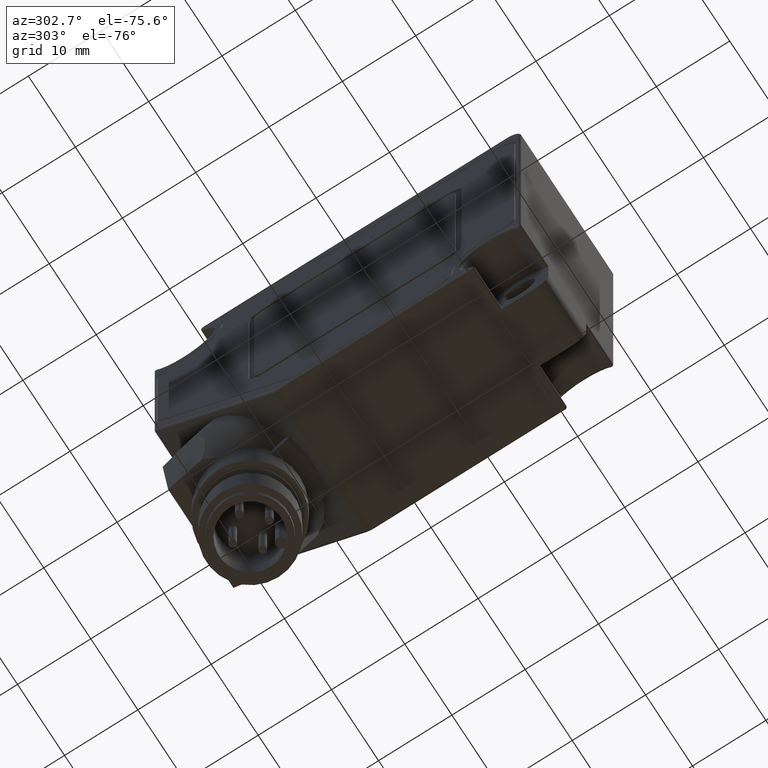
[diagram: clean part render]
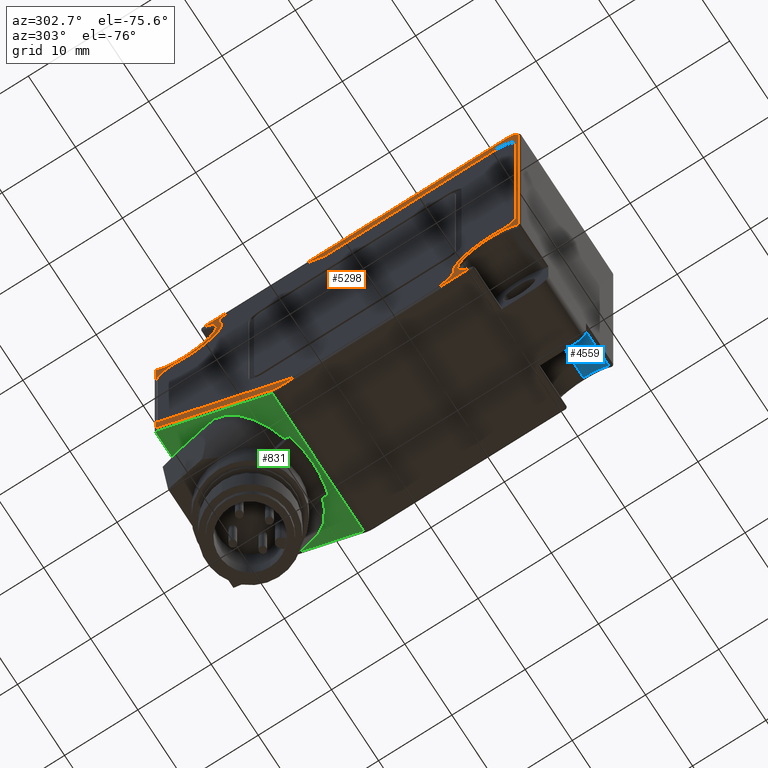
[diagram: same view with three faces highlighted in distinct colors, each labeled with its STEP entity id]
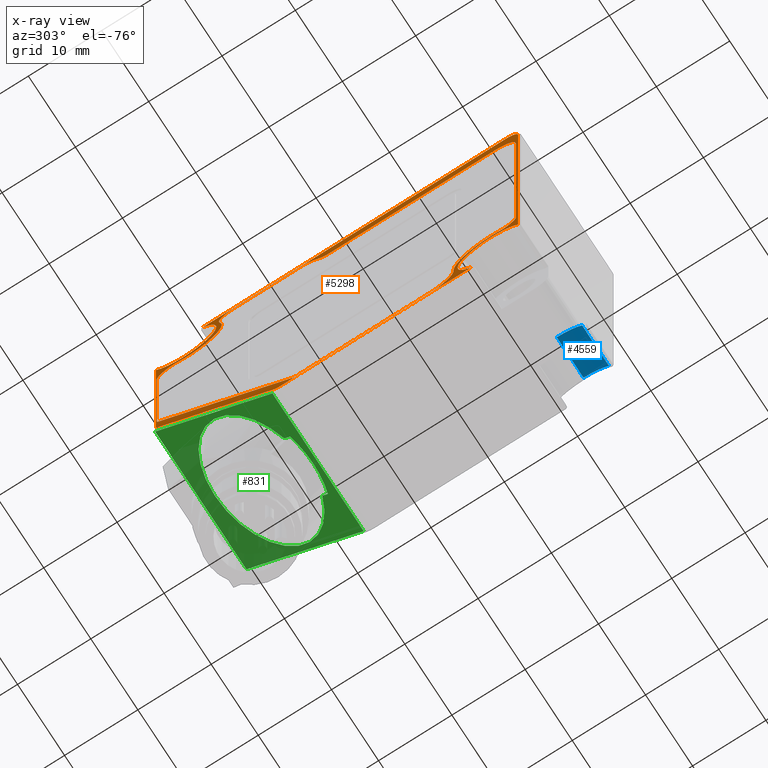
[diagram: x-ray of the same camera — body ghosted, the three highlighted faces saturated]
A machine part, auxiliary view with three faces highlighted in distinct colors.
The next image is the same camera in x-ray (body ghosted, the three faces saturated) — at least one of them is partly hidden behind the body in this view.
Their STEP definitions:

[orange] entity #5298 — the highlighted planar face has unit normal (1, 0, 0).
#92 = CARTESIAN_POINT ( 'NONE',  ( -10.00000000000000000, 21.00000000000051900, 21.00000000000046200 ) ) ;
#130 = CARTESIAN_POINT ( 'NONE',  ( -10.00000000000000000, -24.69999999999976800, -18.35188746462651100 ) ) ;
#157 = DIRECTION ( 'NONE',  ( 0.0000000000000000000, 0.0000000000000000000, -1.000000000000000000 ) ) ;
#504 = ORIENTED_EDGE ( 'NONE', *, *, #12717, .F. ) ;
#519 = VECTOR ( 'NONE', #853, 1000.000000000000000 ) ;
#528 = CIRCLE ( 'NONE', #12953, 3.331281111047055300 ) ;
#536 = EDGE_CURVE ( 'NONE', #5406, #5513, #7795, .T. ) ;
#648 = CARTESIAN_POINT ( 'NONE',  ( -10.00000000000000000, 24.59999999999999400, 13.25441742560608600 ) ) ;
#673 = DIRECTION ( 'NONE',  ( -1.000000000000000000, 0.0000000000000000000, 0.0000000000000000000 ) ) ;
#853 = DIRECTION ( 'NONE',  ( 0.0000000000000000000, -1.912032204741062200E-011, 1.000000000000000000 ) ) ;
#912 = VECTOR ( 'NONE', #2810, 1000.000000000000000 ) ;
#1004 = DIRECTION ( 'NONE',  ( 0.0000000000000000000, 0.0000000000000000000, -1.000000000000000000 ) ) ;
#1045 = ORIENTED_EDGE ( 'NONE', *, *, #3751, .T. ) ;
#1100 = ORIENTED_EDGE ( 'NONE', *, *, #3669, .F. ) ;
#1188 = DIRECTION ( 'NONE',  ( 0.0000000000000000000, 0.0000000000000000000, -1.000000000000000000 ) ) ;
#1234 = ORIENTED_EDGE ( 'NONE', *, *, #11632, .F. ) ;
#1237 = CARTESIAN_POINT ( 'NONE',  ( -10.00000000000000000, 20.46843691131362100, 20.46329335647410700 ) ) ;
#1291 = VERTEX_POINT ( 'NONE', #4062 ) ;
#1368 = DIRECTION ( 'NONE',  ( -1.000000000000000000, -0.0000000000000000000, -0.0000000000000000000 ) ) ;
#1371 = LINE ( 'NONE', #1790, #3963 ) ;
#1445 = VERTEX_POINT ( 'NONE', #9765 ) ;
#1570 = AXIS2_PLACEMENT_3D ( 'NONE', #2067, #9748, #3161 ) ;
#1646 = ORIENTED_EDGE ( 'NONE', *, *, #7006, .F. ) ;
#1712 = ORIENTED_EDGE ( 'NONE', *, *, #7169, .F. ) ;
#1735 = VECTOR ( 'NONE', #6294, 1000.000000000000000 ) ;
#1790 = CARTESIAN_POINT ( 'NONE',  ( -10.00000000000000000, 23.00000000000000400, -24.70000000000000300 ) ) ;
#1798 = EDGE_CURVE ( 'NONE', #12879, #5043, #8626, .T. ) ;
#2044 = EDGE_CURVE ( 'NONE', #3282, #11384, #7933, .T. ) ;
#2067 = CARTESIAN_POINT ( 'NONE',  ( -10.00000000000000000, -21.00000000000165900, -21.00000000000147400 ) ) ;
#2114 = DIRECTION ( 'NONE',  ( -1.000000000000000000, 0.0000000000000000000, 0.0000000000000000000 ) ) ;
#2119 = ORIENTED_EDGE ( 'NONE', *, *, #6905, .T. ) ;
#2238 = CIRCLE ( 'NONE', #6345, 2.395910799220824400 ) ;
#2275 = EDGE_CURVE ( 'NONE', #5513, #12501, #12924, .T. ) ;
#2326 = CARTESIAN_POINT ( 'NONE',  ( -10.00000000000000000, -24.39783230957649000, 19.48473466730392900 ) ) ;
#2354 = DIRECTION ( 'NONE',  ( 0.0000000000000000000, 0.0000000000000000000, -1.000000000000000000 ) ) ;
#2383 = EDGE_CURVE ( 'NONE', #6592, #4982, #10218, .T. ) ;
#2495 = CARTESIAN_POINT ( 'NONE',  ( -10.00000000000000000, -21.00000000000180500, -15.88995179449886800 ) ) ;
#2507 = CIRCLE ( 'NONE', #8859, 1.912846764730597600 ) ;
#2568 = DIRECTION ( 'NONE',  ( 1.000000000000000000, 0.0000000000000000000, 0.0000000000000000000 ) ) ;
#2577 = CARTESIAN_POINT ( 'NONE',  ( -10.00000000000000000, -22.56723011106437200, -14.18068932276107000 ) ) ;
#2679 = ORIENTED_EDGE ( 'NONE', *, *, #1798, .F. ) ;
#2688 = CIRCLE ( 'NONE', #9213, 1.852144326035785300 ) ;
#2702 = CIRCLE ( 'NONE', #5728, 0.9499999999999995100 ) ;
#2764 = VECTOR ( 'NONE', #8242, 1000.000000000000000 ) ;
#2783 = CARTESIAN_POINT ( 'NONE',  ( -10.00000000000000000, 24.32175144212226700, -6.122613639262359800 ) ) ;
#2810 = DIRECTION ( 'NONE',  ( 0.0000000000000000000, -2.643083667417159700E-013, -1.000000000000000000 ) ) ;
#2832 = EDGE_CURVE ( 'NONE', #13973, #12033, #3841, .T. ) ;
#2896 = DIRECTION ( 'NONE',  ( 0.0000000000000000000, -1.000000000000000000, -0.0000000000000000000 ) ) ;
#2911 = CARTESIAN_POINT ( 'NONE',  ( -10.00000000000000000, -21.50125881136200300, 19.65529036514396900 ) ) ;
#2945 = CARTESIAN_POINT ( 'NONE',  ( -10.00000000000000000, 21.85580603588105600, 15.92616638744630300 ) ) ;
#3001 = ORIENTED_EDGE ( 'NONE', *, *, #12418, .F. ) ;
#3020 = ORIENTED_EDGE ( 'NONE', *, *, #4115, .F. ) ;
#3023 = CARTESIAN_POINT ( 'NONE',  ( -10.00000000000000000, -12.58635869798284700, -21.27490654219727200 ) ) ;
#3039 = CARTESIAN_POINT ( 'NONE',  ( -10.00000000000000000, 22.22348153348595900, 13.55863533458049000 ) ) ;
#3087 = PLANE ( 'NONE',  #7059 ) ;
#3092 = VECTOR ( 'NONE', #9065, 1000.000000000000000 ) ;
#3145 = ORIENTED_EDGE ( 'NONE', *, *, #10085, .F. ) ;
#3161 = DIRECTION ( 'NONE',  ( 0.0000000000000000000, 0.0000000000000000000, -1.000000000000000000 ) ) ;
#3191 = AXIS2_PLACEMENT_3D ( 'NONE', #4087, #11730, #5196 ) ;
#3282 = VERTEX_POINT ( 'NONE', #6753 ) ;
#3340 = ORIENTED_EDGE ( 'NONE', *, *, #12126, .F. ) ;
#3354 = EDGE_LOOP ( 'NONE', ( #8108, #7501, #1045, #2119, #5195, #13260, #7850, #13383, #10956, #6009 ) ) ;
#3445 = LINE ( 'NONE', #11682, #519 ) ;
#3485 = CARTESIAN_POINT ( 'NONE',  ( -10.00000000000000000, -22.99999999999998600, 23.00000000000000400 ) ) ;
#3493 = LINE ( 'NONE', #11516, #9334 ) ;
#3506 = CARTESIAN_POINT ( 'NONE',  ( -10.00000000000000000, -15.89183969675968600, -20.86110803139260000 ) ) ;
#3539 = EDGE_CURVE ( 'NONE', #11384, #6311, #8460, .T. ) ;
#3669 = EDGE_CURVE ( 'NONE', #9814, #5406, #3445, .T. ) ;
#3684 = DIRECTION ( 'NONE',  ( 0.0000000000000000000, 0.0000000000000000000, -1.000000000000000000 ) ) ;
#3751 = EDGE_CURVE ( 'NONE', #4911, #5942, #5015, .T. ) ;
#3841 = CIRCLE ( 'NONE', #12081, 0.9500000000000002900 ) ;
#3923 = CARTESIAN_POINT ( 'NONE',  ( -10.00000000000000000, 23.00000000000000400, 24.69999999999999900 ) ) ;
#3963 = VECTOR ( 'NONE', #2896, 1000.000000000000000 ) ;
#3964 = DIRECTION ( 'NONE',  ( -0.0000000000000000000, 1.000000000000000000, 0.0000000000000000000 ) ) ;
#4012 = DIRECTION ( 'NONE',  ( 0.0000000000000000000, 0.0000000000000000000, -1.000000000000000000 ) ) ;
#4062 = CARTESIAN_POINT ( 'NONE',  ( -10.00000000000000000, -24.69999999999998200, 22.99999999999998900 ) ) ;
#4087 = CARTESIAN_POINT ( 'NONE',  ( -10.00000000000000000, 21.00000000000051900, 21.00000000000046200 ) ) ;
#4115 = EDGE_CURVE ( 'NONE', #8044, #7981, #8571, .T. ) ;
#4133 = DIRECTION ( 'NONE',  ( 0.0000000000000000000, 0.0000000000000000000, -1.000000000000000000 ) ) ;
#4147 = DIRECTION ( 'NONE',  ( 0.0000000000000000000, 0.0000000000000000000, -1.000000000000000000 ) ) ;
#4222 = EDGE_CURVE ( 'NONE', #1445, #10029, #14150, .T. ) ;
#4322 = VECTOR ( 'NONE', #7399, 1000.000000000000000 ) ;
#4520 = CIRCLE ( 'NONE', #9645, 1.852144326035785300 ) ;
#4565 = DIRECTION ( 'NONE',  ( 1.000000000000000000, 0.0000000000000000000, 0.0000000000000000000 ) ) ;
#4593 = CIRCLE ( 'NONE', #5552, 1.699999999999996600 ) ;
#4613 = DIRECTION ( 'NONE',  ( 0.0000000000000000000, 0.0000000000000000000, -1.000000000000000000 ) ) ;
#4668 = LINE ( 'NONE', #13866, #1735 ) ;
#4713 = DIRECTION ( 'NONE',  ( -1.000000000000000000, 0.0000000000000000000, 0.0000000000000000000 ) ) ;
#4838 = CARTESIAN_POINT ( 'NONE',  ( -10.00000000000000000, 3.355049469341893100, 23.96881014522390500 ) ) ;
#4911 = VERTEX_POINT ( 'NONE', #9423 ) ;
#4982 = VERTEX_POINT ( 'NONE', #2945 ) ;
#5015 = CIRCLE ( 'NONE', #1570, 4.549999999999561100 ) ;
#5043 = VERTEX_POINT ( 'NONE', #5315 ) ;
#5060 = DIRECTION ( 'NONE',  ( 0.0000000000000000000, 0.0000000000000000000, -1.000000000000000000 ) ) ;
#5195 = ORIENTED_EDGE ( 'NONE', *, *, #10016, .T. ) ;
#5196 = DIRECTION ( 'NONE',  ( 0.0000000000000000000, 0.0000000000000000000, -1.000000000000000000 ) ) ;
#5212 = CARTESIAN_POINT ( 'NONE',  ( -10.00000000000000000, 7.585572875253816100, -24.70000000000000300 ) ) ;
#5266 = CARTESIAN_POINT ( 'NONE',  ( -10.00000000000000000, -22.40373175078568100, -16.08653586210428400 ) ) ;
#5298 = ADVANCED_FACE ( 'NONE', ( #6449, #11879 ), #3087, .F. ) ;
#5315 = CARTESIAN_POINT ( 'NONE',  ( -10.00000000000000000, -12.78930533554444400, -24.59999999999993000 ) ) ;
#5345 = VERTEX_POINT ( 'NONE', #8780 ) ;
#5406 = VERTEX_POINT ( 'NONE', #2326 ) ;
#5513 = VERTEX_POINT ( 'NONE', #12333 ) ;
#5531 = AXIS2_PLACEMENT_3D ( 'NONE', #92, #7799, #1188 ) ;
#5543 = VECTOR ( 'NONE', #5060, 1000.000000000000000 ) ;
#5547 = CARTESIAN_POINT ( 'NONE',  ( -10.00000000000000000, 5.450862197129485900, -24.59999999999999100 ) ) ;
#5552 = AXIS2_PLACEMENT_3D ( 'NONE', #3485, #11141, #4613 ) ;
#5562 = CARTESIAN_POINT ( 'NONE',  ( -10.00000000000000000, 14.27064920895239000, 22.64075989398626400 ) ) ;
#5728 = AXIS2_PLACEMENT_3D ( 'NONE', #11254, #4713, #12318 ) ;
#5942 = VERTEX_POINT ( 'NONE', #130 ) ;
#5960 = ORIENTED_EDGE ( 'NONE', *, *, #2383, .F. ) ;
#6009 = ORIENTED_EDGE ( 'NONE', *, *, #8166, .T. ) ;
#6046 = LINE ( 'NONE', #13302, #3092 ) ;
#6051 = CARTESIAN_POINT ( 'NONE',  ( -10.00000000000000000, 7.585572875253816100, -23.00000000000000000 ) ) ;
#6076 = AXIS2_PLACEMENT_3D ( 'NONE', #1237, #8937, #2354 ) ;
#6095 = ORIENTED_EDGE ( 'NONE', *, *, #8194, .F. ) ;
#6105 = LINE ( 'NONE', #648, #912 ) ;
#6108 = DIRECTION ( 'NONE',  ( 0.0000000000000000000, -0.7071067811865474600, -0.7071067811865474600 ) ) ;
#6143 = CARTESIAN_POINT ( 'NONE',  ( -10.00000000000000000, 6.122613639259238700, -24.32175144212467500 ) ) ;
#6221 = AXIS2_PLACEMENT_3D ( 'NONE', #11105, #4565, #12171 ) ;
#6251 = ORIENTED_EDGE ( 'NONE', *, *, #12734, .F. ) ;
#6294 = DIRECTION ( 'NONE',  ( 0.0000000000000000000, 0.7646883451253350100, 0.6444002908359651700 ) ) ;
#6311 = VERTEX_POINT ( 'NONE', #9476 ) ;
#6345 = AXIS2_PLACEMENT_3D ( 'NONE', #12858, #6373, #13964 ) ;
#6373 = DIRECTION ( 'NONE',  ( -1.000000000000000000, -0.0000000000000000000, -0.0000000000000000000 ) ) ;
#6449 = FACE_BOUND ( 'NONE', #11643, .T. ) ;
#6486 = DIRECTION ( 'NONE',  ( 1.000000000000000000, 0.0000000000000000000, 0.0000000000000000000 ) ) ;
#6520 = VECTOR ( 'NONE', #3964, 1000.000000000000000 ) ;
#6534 = CARTESIAN_POINT ( 'NONE',  ( -10.00000000000000000, 24.59999999999504900, -5.450862197135389700 ) ) ;
#6592 = VERTEX_POINT ( 'NONE', #12516 ) ;
#6701 = DIRECTION ( 'NONE',  ( 0.0000000000000000000, 0.0000000000000000000, -1.000000000000000000 ) ) ;
#6753 = CARTESIAN_POINT ( 'NONE',  ( -10.00000000000000000, 21.00000000000051900, 16.45000000000076300 ) ) ;
#6759 = DIRECTION ( 'NONE',  ( 1.000000000000000000, 0.0000000000000000000, 0.0000000000000000000 ) ) ;
#6767 = ORIENTED_EDGE ( 'NONE', *, *, #7583, .F. ) ;
#6817 = EDGE_CURVE ( 'NONE', #8979, #3282, #10007, .T. ) ;
#6861 = LINE ( 'NONE', #3923, #6520 ) ;
#6898 = CARTESIAN_POINT ( 'NONE',  ( -10.00000000000000000, 14.27064920895239000, 24.49290422002204800 ) ) ;
#6905 = EDGE_CURVE ( 'NONE', #5942, #1291, #12705, .T. ) ;
#6985 = ORIENTED_EDGE ( 'NONE', *, *, #536, .F. ) ;
#7006 = EDGE_CURVE ( 'NONE', #10709, #9182, #4520, .T. ) ;
#7046 = AXIS2_PLACEMENT_3D ( 'NONE', #2911, #10587, #4012 ) ;
#7055 = AXIS2_PLACEMENT_3D ( 'NONE', #3039, #10700, #4147 ) ;
#7059 = AXIS2_PLACEMENT_3D ( 'NONE', #12963, #6486, #14068 ) ;
#7166 = DIRECTION ( 'NONE',  ( 0.0000000000000000000, 0.0000000000000000000, -1.000000000000000000 ) ) ;
#7169 = EDGE_CURVE ( 'NONE', #14124, #12879, #2702, .T. ) ;
#7176 = VERTEX_POINT ( 'NONE', #2495 ) ;
#7207 = ORIENTED_EDGE ( 'NONE', *, *, #11618, .F. ) ;
#7288 = CARTESIAN_POINT ( 'NONE',  ( -10.00000000000000000, 23.64999999999505000, -5.450862197135138300 ) ) ;
#7399 = DIRECTION ( 'NONE',  ( 0.0000000000000000000, 1.000000000000000000, -1.553505189708375000E-016 ) ) ;
#7437 = VECTOR ( 'NONE', #7847, 1000.000000000000100 ) ;
#7501 = ORIENTED_EDGE ( 'NONE', *, *, #12626, .T. ) ;
#7583 = EDGE_CURVE ( 'NONE', #9534, #9814, #2507, .T. ) ;
#7618 = DIRECTION ( 'NONE',  ( -1.000000000000000000, -0.0000000000000000000, -0.0000000000000000000 ) ) ;
#7795 = CIRCLE ( 'NONE', #7046, 2.901590473623767900 ) ;
#7799 = DIRECTION ( 'NONE',  ( 1.000000000000000000, 0.0000000000000000000, 0.0000000000000000000 ) ) ;
#7841 = CARTESIAN_POINT ( 'NONE',  ( -10.00000000000000000, 4.772730109181014600, 24.48649578594816500 ) ) ;
#7847 = DIRECTION ( 'NONE',  ( 0.0000000000000000000, -0.7071067811865613400, -0.7071067811865335800 ) ) ;
#7850 = ORIENTED_EDGE ( 'NONE', *, *, #6817, .T. ) ;
#7924 = CARTESIAN_POINT ( 'NONE',  ( -10.00000000000000000, 14.11670889067858600, 24.48649578594816800 ) ) ;
#7933 = CIRCLE ( 'NONE', #3191, 4.549999999999700500 ) ;
#7975 = CARTESIAN_POINT ( 'NONE',  ( -10.00000000000000000, 14.27064920895239000, 22.64075989398626400 ) ) ;
#7981 = VERTEX_POINT ( 'NONE', #7841 ) ;
#8044 = VERTEX_POINT ( 'NONE', #4838 ) ;
#8091 = EDGE_CURVE ( 'NONE', #11000, #14111, #9681, .T. ) ;
#8108 = ORIENTED_EDGE ( 'NONE', *, *, #8091, .F. ) ;
#8166 = EDGE_CURVE ( 'NONE', #6311, #14111, #3493, .T. ) ;
#8194 = EDGE_CURVE ( 'NONE', #5345, #13973, #6105, .T. ) ;
#8242 = DIRECTION ( 'NONE',  ( 0.0000000000000000000, -1.000000000000000000, 3.233555726807797400E-015 ) ) ;
#8392 = DIRECTION ( 'NONE',  ( 0.0000000000000000000, 0.0000000000000000000, 1.000000000000000000 ) ) ;
#8460 = LINE ( 'NONE', #10502, #5543 ) ;
#8558 = AXIS2_PLACEMENT_3D ( 'NONE', #14105, #7618, #1004 ) ;
#8571 = CIRCLE ( 'NONE', #8695, 2.200000000000000600 ) ;
#8626 = LINE ( 'NONE', #9317, #2764 ) ;
#8695 = AXIS2_PLACEMENT_3D ( 'NONE', #8716, #2114, #9787 ) ;
#8716 = CARTESIAN_POINT ( 'NONE',  ( -10.00000000000000000, 4.772730109181014600, 22.28649578594816600 ) ) ;
#8780 = CARTESIAN_POINT ( 'NONE',  ( -10.00000000000000000, 24.59999999999999400, 13.25441742560608600 ) ) ;
#8793 = VERTEX_POINT ( 'NONE', #11519 ) ;
#8859 = AXIS2_PLACEMENT_3D ( 'NONE', #2577, #10256, #3684 ) ;
#8928 = CARTESIAN_POINT ( 'NONE',  ( -10.00000000000000000, 2.175285842334393900, 22.97462731347599900 ) ) ;
#8937 = DIRECTION ( 'NONE',  ( 1.000000000000000000, 0.0000000000000000000, 0.0000000000000000000 ) ) ;
#8979 = VERTEX_POINT ( 'NONE', #10906 ) ;
#9065 = DIRECTION ( 'NONE',  ( 0.0000000000000000000, 1.000000000000000000, 3.713029570255039100E-016 ) ) ;
#9066 = DIRECTION ( 'NONE',  ( 0.0000000000000000000, 0.0000000000000000000, -1.000000000000000000 ) ) ;
#9070 = DIRECTION ( 'NONE',  ( -0.0000000000000000000, 0.0000000000000000000, 1.000000000000000000 ) ) ;
#9153 = CARTESIAN_POINT ( 'NONE',  ( -10.00000000000000000, -21.00000000000180500, -21.00000000000180800 ) ) ;
#9182 = VERTEX_POINT ( 'NONE', #6898 ) ;
#9213 = AXIS2_PLACEMENT_3D ( 'NONE', #7975, #1368, #9066 ) ;
#9214 = AXIS2_PLACEMENT_3D ( 'NONE', #6051, #13651, #7166 ) ;
#9317 = CARTESIAN_POINT ( 'NONE',  ( -10.00000000000000000, 5.450862197129485900, -24.59999999999999100 ) ) ;
#9334 = VECTOR ( 'NONE', #6108, 1000.000000000000100 ) ;
#9368 = CARTESIAN_POINT ( 'NONE',  ( -10.00000000000000000, 22.22348153348595900, 15.95454613380131400 ) ) ;
#9423 = CARTESIAN_POINT ( 'NONE',  ( -10.00000000000000000, -18.35188746462652500, -24.69999999999946300 ) ) ;
#9476 = CARTESIAN_POINT ( 'NONE',  ( -10.00000000000000000, 24.69999999999999900, -8.289735931288072700 ) ) ;
#9534 = VERTEX_POINT ( 'NONE', #5266 ) ;
#9645 = AXIS2_PLACEMENT_3D ( 'NONE', #5562, #13181, #6701 ) ;
#9681 = CIRCLE ( 'NONE', #9214, 1.700000000000000200 ) ;
#9748 = DIRECTION ( 'NONE',  ( 1.000000000000000000, 0.0000000000000000000, 0.0000000000000000000 ) ) ;
#9765 = CARTESIAN_POINT ( 'NONE',  ( -10.00000000000000000, 1.015365318829651000, 22.55106633470160600 ) ) ;
#9787 = DIRECTION ( 'NONE',  ( 0.0000000000000000000, 0.0000000000000000000, 1.000000000000000000 ) ) ;
#9814 = VERTEX_POINT ( 'NONE', #11350 ) ;
#9839 = VECTOR ( 'NONE', #9070, 1000.000000000000000 ) ;
#9934 = ORIENTED_EDGE ( 'NONE', *, *, #12460, .F. ) ;
#10007 = CIRCLE ( 'NONE', #5531, 4.549999999999700500 ) ;
#10016 = EDGE_CURVE ( 'NONE', #1291, #8793, #4593, .T. ) ;
#10029 = VERTEX_POINT ( 'NONE', #8928 ) ;
#10085 = EDGE_CURVE ( 'NONE', #9182, #6592, #2688, .T. ) ;
#10147 = EDGE_CURVE ( 'NONE', #7176, #9534, #14134, .T. ) ;
#10195 = CARTESIAN_POINT ( 'NONE',  ( -10.00000000000000000, -21.31765921779839700, 22.55106633470160900 ) ) ;
#10218 = CIRCLE ( 'NONE', #6076, 4.744503580026308700 ) ;
#10248 = DIRECTION ( 'NONE',  ( 0.0000000000000000000, 0.0000000000000000000, -1.000000000000000000 ) ) ;
#10256 = DIRECTION ( 'NONE',  ( -1.000000000000000000, -0.0000000000000000000, -0.0000000000000000000 ) ) ;
#10276 = CARTESIAN_POINT ( 'NONE',  ( -10.00000000000000000, 24.69999999999970400, 18.35188746462677000 ) ) ;
#10455 = CARTESIAN_POINT ( 'NONE',  ( -10.00000000000000000, 8.787654403270950700, -24.20208152801713600 ) ) ;
#10483 = LINE ( 'NONE', #10657, #4322 ) ;
#10502 = CARTESIAN_POINT ( 'NONE',  ( -10.00000000000000000, 24.69999999999999900, 23.00000000000000400 ) ) ;
#10587 = DIRECTION ( 'NONE',  ( -1.000000000000000000, -0.0000000000000000000, -0.0000000000000000000 ) ) ;
#10607 = ORIENTED_EDGE ( 'NONE', *, *, #10663, .F. ) ;
#10657 = CARTESIAN_POINT ( 'NONE',  ( -10.00000000000000000, -21.31765921779839300, 22.55106633470160900 ) ) ;
#10663 = EDGE_CURVE ( 'NONE', #11881, #7176, #11216, .T. ) ;
#10685 = DIRECTION ( 'NONE',  ( -1.000000000000000000, -0.0000000000000000000, -0.0000000000000000000 ) ) ;
#10700 = DIRECTION ( 'NONE',  ( -1.000000000000000000, -0.0000000000000000000, -0.0000000000000000000 ) ) ;
#10709 = VERTEX_POINT ( 'NONE', #7924 ) ;
#10832 = ORIENTED_EDGE ( 'NONE', *, *, #2832, .F. ) ;
#10906 = CARTESIAN_POINT ( 'NONE',  ( -10.00000000000000000, 18.35188746462480200, 24.69999999999999900 ) ) ;
#10956 = ORIENTED_EDGE ( 'NONE', *, *, #3539, .T. ) ;
#11000 = VERTEX_POINT ( 'NONE', #5212 ) ;
#11100 = CARTESIAN_POINT ( 'NONE',  ( -10.00000000000000000, 24.32175144212226700, -6.122613639262360700 ) ) ;
#11105 = CARTESIAN_POINT ( 'NONE',  ( -10.00000000000000000, 1.015365318829660100, 24.35106633470160300 ) ) ;
#11141 = DIRECTION ( 'NONE',  ( -1.000000000000000000, -0.0000000000000000000, -0.0000000000000000000 ) ) ;
#11216 = CIRCLE ( 'NONE', #11303, 5.110048205502939900 ) ;
#11254 = CARTESIAN_POINT ( 'NONE',  ( -10.00000000000000000, 5.450862197129485900, -23.64999999999999100 ) ) ;
#11303 = AXIS2_PLACEMENT_3D ( 'NONE', #13246, #6759, #157 ) ;
#11323 = LINE ( 'NONE', #11100, #7437 ) ;
#11350 = CARTESIAN_POINT ( 'NONE',  ( -10.00000000000000000, -24.39783230892218700, -14.73555717958687300 ) ) ;
#11384 = VERTEX_POINT ( 'NONE', #10276 ) ;
#11516 = CARTESIAN_POINT ( 'NONE',  ( -10.00000000000000000, 39.49486796564404000, 6.505132034355963100 ) ) ;
#11519 = CARTESIAN_POINT ( 'NONE',  ( -10.00000000000000000, -22.99999999999997200, 24.69999999999999900 ) ) ;
#11618 = EDGE_CURVE ( 'NONE', #10029, #8044, #4668, .T. ) ;
#11632 = EDGE_CURVE ( 'NONE', #12501, #1445, #10483, .T. ) ;
#11643 = EDGE_LOOP ( 'NONE', ( #1234, #11912, #6985, #1100, #6767, #13685, #10607, #3340, #2679, #1712, #3001, #10832, #6095, #6251, #504, #5960, #3145, #1646, #9934, #3020, #7207, #12816 ) ) ;
#11682 = CARTESIAN_POINT ( 'NONE',  ( -10.00000000000000000, -24.39783230892218700, -14.73555717958687300 ) ) ;
#11730 = DIRECTION ( 'NONE',  ( 1.000000000000000000, 0.0000000000000000000, 0.0000000000000000000 ) ) ;
#11879 = FACE_OUTER_BOUND ( 'NONE', #3354, .T. ) ;
#11881 = VERTEX_POINT ( 'NONE', #3506 ) ;
#11912 = ORIENTED_EDGE ( 'NONE', *, *, #2275, .F. ) ;
#12033 = VERTEX_POINT ( 'NONE', #2783 ) ;
#12081 = AXIS2_PLACEMENT_3D ( 'NONE', #7288, #673, #8392 ) ;
#12126 = EDGE_CURVE ( 'NONE', #5043, #11881, #528, .T. ) ;
#12171 = DIRECTION ( 'NONE',  ( 0.0000000000000000000, 0.0000000000000000000, -1.000000000000000000 ) ) ;
#12318 = DIRECTION ( 'NONE',  ( 0.0000000000000000000, 0.0000000000000000000, 1.000000000000000000 ) ) ;
#12333 = CARTESIAN_POINT ( 'NONE',  ( -10.00000000000000000, -21.50125881136200300, 22.55688083876773600 ) ) ;
#12418 = EDGE_CURVE ( 'NONE', #12033, #14124, #11323, .T. ) ;
#12460 = EDGE_CURVE ( 'NONE', #7981, #10709, #6046, .T. ) ;
#12501 = VERTEX_POINT ( 'NONE', #10195 ) ;
#12516 = CARTESIAN_POINT ( 'NONE',  ( -10.00000000000000000, 16.08892242460627700, 22.28816789506651500 ) ) ;
#12626 = EDGE_CURVE ( 'NONE', #11000, #4911, #1371, .T. ) ;
#12705 = LINE ( 'NONE', #13356, #9839 ) ;
#12717 = EDGE_CURVE ( 'NONE', #4982, #14107, #13504, .T. ) ;
#12734 = EDGE_CURVE ( 'NONE', #14107, #5345, #2238, .T. ) ;
#12816 = ORIENTED_EDGE ( 'NONE', *, *, #4222, .F. ) ;
#12826 = AXIS2_PLACEMENT_3D ( 'NONE', #9153, #2568, #10248 ) ;
#12858 = CARTESIAN_POINT ( 'NONE',  ( -10.00000000000000000, 22.22348153348595900, 13.55863533458049000 ) ) ;
#12879 = VERTEX_POINT ( 'NONE', #5547 ) ;
#12924 = CIRCLE ( 'NONE', #8558, 2.901590473623767900 ) ;
#12953 = AXIS2_PLACEMENT_3D ( 'NONE', #3023, #10685, #4133 ) ;
#12963 = CARTESIAN_POINT ( 'NONE',  ( -10.00000000000000000, 23.00000000000000400, 23.00000000000000400 ) ) ;
#13181 = DIRECTION ( 'NONE',  ( -1.000000000000000000, -0.0000000000000000000, -0.0000000000000000000 ) ) ;
#13246 = CARTESIAN_POINT ( 'NONE',  ( -10.00000000000000000, -21.00000000000180500, -21.00000000000180800 ) ) ;
#13260 = ORIENTED_EDGE ( 'NONE', *, *, #13830, .T. ) ;
#13302 = CARTESIAN_POINT ( 'NONE',  ( -10.00000000000000000, 4.772730109181013700, 24.48649578594816500 ) ) ;
#13356 = CARTESIAN_POINT ( 'NONE',  ( -10.00000000000000000, -24.69999999999998200, 23.00000000000000400 ) ) ;
#13383 = ORIENTED_EDGE ( 'NONE', *, *, #2044, .T. ) ;
#13504 = CIRCLE ( 'NONE', #7055, 2.395910799220824400 ) ;
#13651 = DIRECTION ( 'NONE',  ( 1.000000000000000000, 0.0000000000000000000, 0.0000000000000000000 ) ) ;
#13685 = ORIENTED_EDGE ( 'NONE', *, *, #10147, .F. ) ;
#13830 = EDGE_CURVE ( 'NONE', #8793, #8979, #6861, .T. ) ;
#13866 = CARTESIAN_POINT ( 'NONE',  ( -10.00000000000000000, 2.175285842334393500, 22.97462731347599900 ) ) ;
#13964 = DIRECTION ( 'NONE',  ( 0.0000000000000000000, 0.0000000000000000000, -1.000000000000000000 ) ) ;
#13973 = VERTEX_POINT ( 'NONE', #6534 ) ;
#14068 = DIRECTION ( 'NONE',  ( 0.0000000000000000000, 0.0000000000000000000, -1.000000000000000000 ) ) ;
#14105 = CARTESIAN_POINT ( 'NONE',  ( -10.00000000000000000, -21.50125881136200300, 19.65529036514396900 ) ) ;
#14107 = VERTEX_POINT ( 'NONE', #9368 ) ;
#14111 = VERTEX_POINT ( 'NONE', #10455 ) ;
#14124 = VERTEX_POINT ( 'NONE', #6143 ) ;
#14134 = CIRCLE ( 'NONE', #12826, 5.110048205502939900 ) ;
#14150 = CIRCLE ( 'NONE', #6221, 1.799999999999999600 ) ;

[blue] entity #4559 — the highlighted cylindrical surface (partial cylindrical patch) has radius 4.25 mm, axis along (-1, -0, -0).
#125 = DIRECTION ( 'NONE',  ( 0.0000000000000000000, 0.0000000000000000000, 1.000000000000000000 ) ) ;
#587 = CARTESIAN_POINT ( 'NONE',  ( 9.700000000000001100, -24.45604395604376400, -18.52648829113468700 ) ) ;
#891 = CARTESIAN_POINT ( 'NONE',  ( 10.00000000000000000, -21.00000000000165900, -16.75000000000191100 ) ) ;
#1220 = VERTEX_POINT ( 'NONE', #587 ) ;
#1510 = VERTEX_POINT ( 'NONE', #9803 ) ;
#1597 = DIRECTION ( 'NONE',  ( 1.000000000000000000, 0.0000000000000000000, 0.0000000000000000000 ) ) ;
#2117 = EDGE_CURVE ( 'NONE', #1510, #2453, #12658, .T. ) ;
#2276 = ORIENTED_EDGE ( 'NONE', *, *, #9729, .F. ) ;
#2453 = VERTEX_POINT ( 'NONE', #4452 ) ;
#2717 = CIRCLE ( 'NONE', #4154, 4.249999999999563000 ) ;
#3368 = FACE_OUTER_BOUND ( 'NONE', #13928, .T. ) ;
#4154 = AXIS2_PLACEMENT_3D ( 'NONE', #12182, #5699, #13280 ) ;
#4431 = CARTESIAN_POINT ( 'NONE',  ( 4.000000000000000000, -24.45604395604376400, -18.52648829113468700 ) ) ;
#4452 = CARTESIAN_POINT ( 'NONE',  ( 4.000000000000000000, -21.00000000000165900, -16.75000000000191100 ) ) ;
#4559 = ADVANCED_FACE ( 'NONE', ( #3368 ), #4929, .F. ) ;
#4640 = AXIS2_PLACEMENT_3D ( 'NONE', #13122, #9948, #125 ) ;
#4929 = CYLINDRICAL_SURFACE ( 'NONE', #4640, 4.249999999999563000 ) ;
#5034 = CARTESIAN_POINT ( 'NONE',  ( 10.00000000000000000, -24.45604395604376400, -18.52648829113468700 ) ) ;
#5699 = DIRECTION ( 'NONE',  ( 1.000000000000000000, -0.0000000000000000000, -0.0000000000000000000 ) ) ;
#7594 = VECTOR ( 'NONE', #8605, 1000.000000000000000 ) ;
#7661 = ORIENTED_EDGE ( 'NONE', *, *, #9278, .T. ) ;
#8208 = CARTESIAN_POINT ( 'NONE',  ( 9.700000000000001100, -21.00000000000165900, -21.00000000000147400 ) ) ;
#8279 = ORIENTED_EDGE ( 'NONE', *, *, #2117, .F. ) ;
#8605 = DIRECTION ( 'NONE',  ( -1.000000000000000000, -0.0000000000000000000, -0.0000000000000000000 ) ) ;
#9277 = DIRECTION ( 'NONE',  ( 0.0000000000000000000, 0.0000000000000000000, -1.000000000000000000 ) ) ;
#9278 = EDGE_CURVE ( 'NONE', #1510, #1220, #10611, .T. ) ;
#9430 = DIRECTION ( 'NONE',  ( -1.000000000000000000, -0.0000000000000000000, -0.0000000000000000000 ) ) ;
#9729 = EDGE_CURVE ( 'NONE', #2453, #9943, #2717, .T. ) ;
#9803 = CARTESIAN_POINT ( 'NONE',  ( 9.700000000000001100, -21.00000000000165900, -16.75000000000191100 ) ) ;
#9943 = VERTEX_POINT ( 'NONE', #4431 ) ;
#9948 = DIRECTION ( 'NONE',  ( -1.000000000000000000, -0.0000000000000000000, -0.0000000000000000000 ) ) ;
#9966 = ORIENTED_EDGE ( 'NONE', *, *, #13824, .T. ) ;
#10611 = CIRCLE ( 'NONE', #12264, 4.249999999999563000 ) ;
#12182 = CARTESIAN_POINT ( 'NONE',  ( 4.000000000000000000, -21.00000000000165900, -21.00000000000147400 ) ) ;
#12264 = AXIS2_PLACEMENT_3D ( 'NONE', #8208, #1597, #9277 ) ;
#12273 = VECTOR ( 'NONE', #9430, 1000.000000000000000 ) ;
#12658 = LINE ( 'NONE', #891, #7594 ) ;
#12959 = LINE ( 'NONE', #5034, #12273 ) ;
#13122 = CARTESIAN_POINT ( 'NONE',  ( 10.00000000000000000, -21.00000000000165900, -21.00000000000147400 ) ) ;
#13280 = DIRECTION ( 'NONE',  ( 0.0000000000000000000, 0.0000000000000000000, -1.000000000000000000 ) ) ;
#13824 = EDGE_CURVE ( 'NONE', #1220, #9943, #12959, .T. ) ;
#13928 = EDGE_LOOP ( 'NONE', ( #8279, #7661, #9966, #2276 ) ) ;

[green] entity #831 — the highlighted planar face has unit normal (0, -0.7071, 0.7071).
#95 = EDGE_CURVE ( 'NONE', #10976, #6665, #12539, .T. ) ;
#484 = CIRCLE ( 'NONE', #7410, 9.000000000000000000 ) ;
#530 = CARTESIAN_POINT ( 'NONE',  ( -9.700000000000001100, 25.00000000000000000, -8.414000000000001500 ) ) ;
#586 = VECTOR ( 'NONE', #599, 1000.000000000000000 ) ;
#599 = DIRECTION ( 'NONE',  ( 1.000000000000000000, -0.0000000000000000000, -0.0000000000000000000 ) ) ;
#633 = DIRECTION ( 'NONE',  ( -0.0000000000000000000, 0.7071067811865476800, -0.7071067811865474600 ) ) ;
#713 = VERTEX_POINT ( 'NONE', #4064 ) ;
#831 = ADVANCED_FACE ( 'NONE', ( #8347, #14097 ), #13002, .F. ) ;
#1050 = CARTESIAN_POINT ( 'NONE',  ( -9.700000000000001100, 8.414000000000001500, -25.00000000000000000 ) ) ;
#1257 = VECTOR ( 'NONE', #6997, 1000.000000000000100 ) ;
#1264 = EDGE_CURVE ( 'NONE', #5753, #12979, #11688, .T. ) ;
#1302 = ORIENTED_EDGE ( 'NONE', *, *, #1950, .F. ) ;
#1685 = CARTESIAN_POINT ( 'NONE',  ( 0.0000000000000000000, 16.70700000000000800, -16.70700000000000400 ) ) ;
#1880 = CARTESIAN_POINT ( 'NONE',  ( 9.700000000000002800, 25.00000000000000000, -8.414000000000001500 ) ) ;
#1950 = EDGE_CURVE ( 'NONE', #12870, #5753, #8103, .T. ) ;
#1962 = LINE ( 'NONE', #6427, #4897 ) ;
#2356 = ORIENTED_EDGE ( 'NONE', *, *, #12869, .T. ) ;
#2441 = VERTEX_POINT ( 'NONE', #5563 ) ;
#2452 = DIRECTION ( 'NONE',  ( 3.816931527283586000E-012, -0.7071067811865490200, -0.7071067811865460200 ) ) ;
#2506 = VERTEX_POINT ( 'NONE', #4595 ) ;
#2782 = DIRECTION ( 'NONE',  ( 0.0000000000000000000, -0.7071067811865473500, -0.7071067811865475700 ) ) ;
#3150 = CARTESIAN_POINT ( 'NONE',  ( 0.0000000000000000000, 16.70700000000000800, -16.70700000000000400 ) ) ;
#3256 = CARTESIAN_POINT ( 'NONE',  ( 0.0000000000000000000, 9.635932188132487800, -23.77806781186752600 ) ) ;
#3922 = LINE ( 'NONE', #9039, #9756 ) ;
#3924 = CARTESIAN_POINT ( 'NONE',  ( -10.00000000000000000, 25.00000000000000000, -8.414000000000001500 ) ) ;
#3961 = DIRECTION ( 'NONE',  ( -3.816146473480388900E-012, 0.7071067811865490200, 0.7071067811865460200 ) ) ;
#4016 = ORIENTED_EDGE ( 'NONE', *, *, #6263, .T. ) ;
#4064 = CARTESIAN_POINT ( 'NONE',  ( 4.032444172897077900, 11.01756268193116900, -22.39643731806883400 ) ) ;
#4251 = CIRCLE ( 'NONE', #5512, 10.00000000000289400 ) ;
#4273 = DIRECTION ( 'NONE',  ( 0.0000000000000000000, 0.7071067811865473500, 0.7071067811865476800 ) ) ;
#4407 = ORIENTED_EDGE ( 'NONE', *, *, #95, .T. ) ;
#4519 = ORIENTED_EDGE ( 'NONE', *, *, #1264, .F. ) ;
#4595 = CARTESIAN_POINT ( 'NONE',  ( -9.700000000000001100, 8.999786437626909200, -24.41421356237309200 ) ) ;
#4897 = VECTOR ( 'NONE', #12926, 1000.000000000000000 ) ;
#5512 = AXIS2_PLACEMENT_3D ( 'NONE', #7238, #633, #8344 ) ;
#5563 = CARTESIAN_POINT ( 'NONE',  ( 4.032444172901295000, 10.23632020601807100, -23.17767979398193700 ) ) ;
#5609 = EDGE_CURVE ( 'NONE', #2441, #12870, #4251, .T. ) ;
#5695 = VECTOR ( 'NONE', #10932, 1000.000000000000100 ) ;
#5705 = AXIS2_PLACEMENT_3D ( 'NONE', #1685, #9357, #2782 ) ;
#5753 = VERTEX_POINT ( 'NONE', #9602 ) ;
#5861 = EDGE_LOOP ( 'NONE', ( #12152, #4519, #1302, #7856, #13068 ) ) ;
#5910 = VECTOR ( 'NONE', #3961, 1000.000000000000100 ) ;
#6249 = CARTESIAN_POINT ( 'NONE',  ( -4.032444172898491900, 11.01756268193167900, -22.39643731806833300 ) ) ;
#6263 = EDGE_CURVE ( 'NONE', #10858, #10976, #9018, .T. ) ;
#6325 = CARTESIAN_POINT ( 'NONE',  ( 9.700000000000002800, 8.999786437626909200, -24.41421356237309200 ) ) ;
#6386 = ORIENTED_EDGE ( 'NONE', *, *, #6390, .T. ) ;
#6390 = EDGE_CURVE ( 'NONE', #6665, #2506, #1962, .T. ) ;
#6427 = CARTESIAN_POINT ( 'NONE',  ( -10.00000000000000000, 8.999786437626909200, -24.41421356237309200 ) ) ;
#6574 = DIRECTION ( 'NONE',  ( 0.0000000000000000000, -0.7071067811865475700, 0.7071067811865475700 ) ) ;
#6665 = VERTEX_POINT ( 'NONE', #6325 ) ;
#6868 = AXIS2_PLACEMENT_3D ( 'NONE', #13054, #6574, #14164 ) ;
#6997 = DIRECTION ( 'NONE',  ( 0.0000000000000000000, -0.7071067811865474600, -0.7071067811865474600 ) ) ;
#7238 = CARTESIAN_POINT ( 'NONE',  ( 0.0000000000000000000, 16.70700000000000800, -16.70700000000000400 ) ) ;
#7410 = AXIS2_PLACEMENT_3D ( 'NONE', #3150, #10822, #4273 ) ;
#7856 = ORIENTED_EDGE ( 'NONE', *, *, #5609, .F. ) ;
#8103 = CIRCLE ( 'NONE', #5705, 10.00000000000289400 ) ;
#8344 = DIRECTION ( 'NONE',  ( 0.0000000000000000000, -0.7071067811865473500, -0.7071067811865475700 ) ) ;
#8347 = FACE_OUTER_BOUND ( 'NONE', #12993, .T. ) ;
#8604 = LINE ( 'NONE', #1050, #5695 ) ;
#9018 = LINE ( 'NONE', #3924, #586 ) ;
#9039 = CARTESIAN_POINT ( 'NONE',  ( 4.032444172897077900, 11.01756268193118000, -22.39643731806883400 ) ) ;
#9074 = CARTESIAN_POINT ( 'NONE',  ( -4.032444172898491000, 11.01756268193167000, -22.39643731806832600 ) ) ;
#9357 = DIRECTION ( 'NONE',  ( -0.0000000000000000000, 0.7071067811865476800, -0.7071067811865474600 ) ) ;
#9602 = CARTESIAN_POINT ( 'NONE',  ( -4.032444172894273000, 10.23632020601587900, -23.17767979398412200 ) ) ;
#9750 = EDGE_CURVE ( 'NONE', #713, #2441, #3922, .T. ) ;
#9756 = VECTOR ( 'NONE', #2452, 1000.000000000000100 ) ;
#10822 = DIRECTION ( 'NONE',  ( 0.0000000000000000000, 0.7071067811865476800, -0.7071067811865474600 ) ) ;
#10858 = VERTEX_POINT ( 'NONE', #530 ) ;
#10932 = DIRECTION ( 'NONE',  ( -0.0000000000000000000, 0.7071067811865474600, 0.7071067811865474600 ) ) ;
#10976 = VERTEX_POINT ( 'NONE', #1880 ) ;
#11688 = LINE ( 'NONE', #6249, #5910 ) ;
#12152 = ORIENTED_EDGE ( 'NONE', *, *, #13272, .F. ) ;
#12387 = CARTESIAN_POINT ( 'NONE',  ( 9.700000000000002800, 8.414000000000001500, -25.00000000000000000 ) ) ;
#12539 = LINE ( 'NONE', #12387, #1257 ) ;
#12869 = EDGE_CURVE ( 'NONE', #2506, #10858, #8604, .T. ) ;
#12870 = VERTEX_POINT ( 'NONE', #3256 ) ;
#12926 = DIRECTION ( 'NONE',  ( -1.000000000000000000, -0.0000000000000000000, -0.0000000000000000000 ) ) ;
#12979 = VERTEX_POINT ( 'NONE', #9074 ) ;
#12993 = EDGE_LOOP ( 'NONE', ( #4407, #6386, #2356, #4016 ) ) ;
#13002 = PLANE ( 'NONE',  #6868 ) ;
#13054 = CARTESIAN_POINT ( 'NONE',  ( -10.00000000000000000, 8.414000000000001500, -25.00000000000000000 ) ) ;
#13068 = ORIENTED_EDGE ( 'NONE', *, *, #9750, .F. ) ;
#13272 = EDGE_CURVE ( 'NONE', #12979, #713, #484, .T. ) ;
#14097 = FACE_BOUND ( 'NONE', #5861, .T. ) ;
#14164 = DIRECTION ( 'NONE',  ( 0.0000000000000000000, -0.7071067811865474600, -0.7071067811865474600 ) ) ;